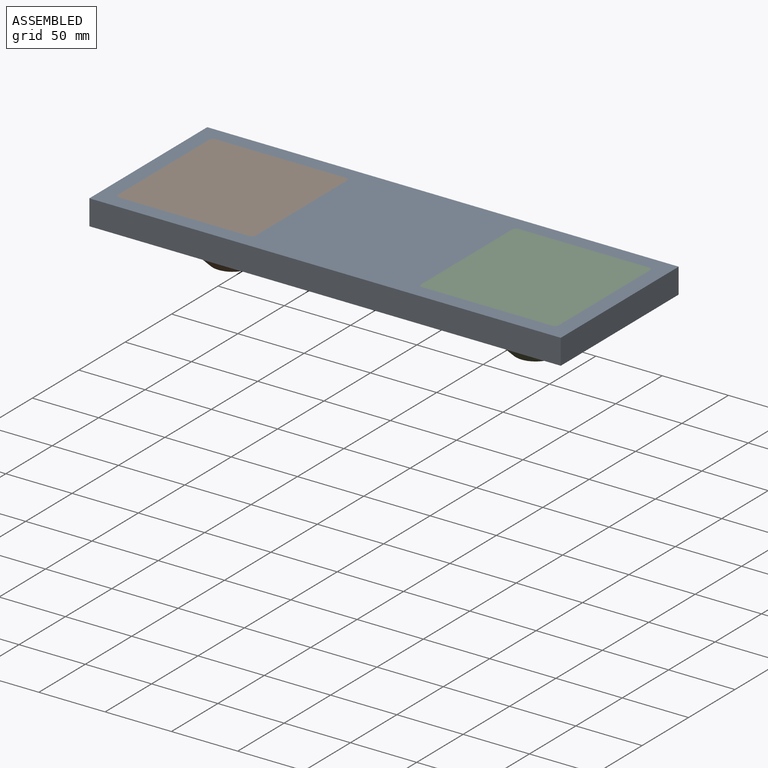
[diagram: assembled view]
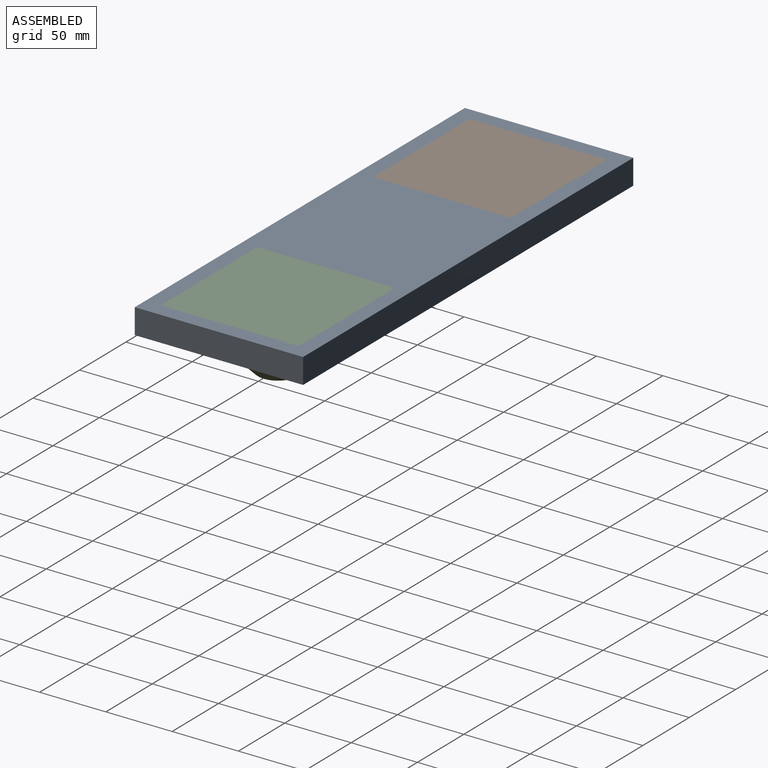
[diagram: assembled view, second angle]
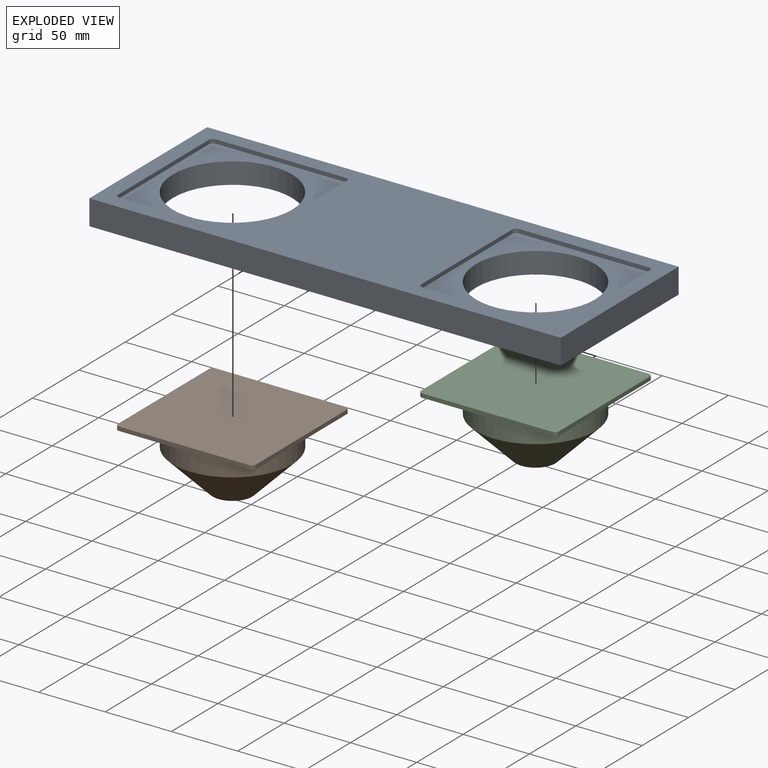
[diagram: exploded view]
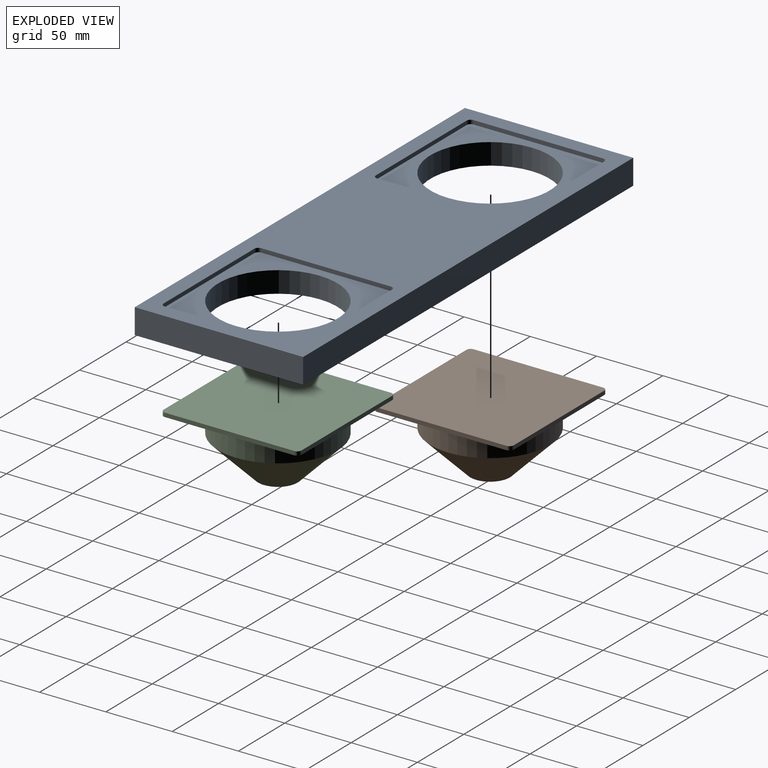
[diagram: exploded view, second angle]
ASSEMBLY  parts=3 mates=2
PART A: 26 faces, bbox 355.6x127x19.1 mm
  f0: plane 355.6x127mm, normal (0,0,1), area 23546.5mm2, adj f1,f2,f3,f4,f6,f7,f8,f9
  f1: plane 127x19.05mm, normal (1,0,0), area 2419.3mm2, adj f0,f2,f4,f5
  f2: plane 355.6x19.05mm, normal (0,1,0), area 6774.2mm2, adj f0,f1,f3,f5
  f3: plane 127x19.05mm, normal (-1,0,0), area 2419.3mm2, adj f0,f2,f4,f5
  f4: plane 355.6x19.05mm, normal (0,-1,0), area 6774.2mm2, adj f0,f1,f3,f5
  f5: plane 355.6x127mm, normal (0,0,-1), area 32437.7mm2, adj f1,f2,f3,f4,f15,f25
  f6: plane 97.65x3mm, normal (-1,0,0), area 293mm2, adj f0,f7,f13,f14
  f7: cylinder r=3.17mm len=3.18mm, axis (0,0,1), area 15mm2, adj f0,f6,f8,f14
  f8: plane 97.65x3mm, normal (0,-1,0), area 293mm2, adj f0,f7,f9,f14
  f9: cylinder r=3.17mm len=3.18mm, axis (0,0,1), area 15mm2, adj f0,f8,f10,f14
  f10: plane 97.65x3mm, normal (1,0,0), area 293mm2, adj f0,f9,f11,f14
  f11: cylinder r=3.17mm len=3.18mm, axis (0,0,1), area 15mm2, adj f0,f10,f12,f14
  f12: plane 97.65x3mm, normal (0,1,0), area 293mm2, adj f0,f11,f13,f14
  f13: cylinder r=3.17mm len=3.18mm, axis (0,0,1), area 15mm2, adj f0,f6,f12,f14
  f14: plane 104x104mm, normal (0,0,1), area 4445.6mm2, adj f6,f7,f8,f9,f10,f11,f12,f13
  f15: cylinder r=45mm len=90mm, axis (0,0,1), area 4538mm2, adj f5,f14
  f16: plane 97.65x3mm, normal (-1,0,0), area 293mm2, adj f0,f17,f23,f24
  f17: cylinder r=3.17mm len=3.18mm, axis (0,0,1), area 15mm2, adj f0,f16,f18,f24
  f18: plane 97.65x3mm, normal (0,-1,0), area 293mm2, adj f0,f17,f19,f24
  f19: cylinder r=3.17mm len=3.18mm, axis (0,0,1), area 15mm2, adj f0,f18,f20,f24
  f20: plane 97.65x3mm, normal (1,0,0), area 293mm2, adj f0,f19,f21,f24
  f21: cylinder r=3.17mm len=3.18mm, axis (0,0,1), area 15mm2, adj f0,f20,f22,f24
  f22: plane 97.65x3mm, normal (0,1,0), area 293mm2, adj f0,f21,f23,f24
  f23: cylinder r=3.17mm len=3.18mm, axis (0,0,1), area 15mm2, adj f0,f16,f22,f24
  f24: plane 104x104mm, normal (0,0,1), area 4445.6mm2, adj f16,f17,f18,f19,f20,f21,f22,f23
  f25: cylinder r=45mm len=90mm, axis (0,0,1), area 4538mm2, adj f5,f24
PART B: 13 faces, bbox 104x50.4x104 mm
  f0: plane 97.65x3mm, normal (1,0,0), area 292.9mm2, adj f4,f5,f6,f9
  f1: plane 97.65x3mm, normal (0,0,1), area 292.9mm2, adj f4,f5,f6,f7
  f2: plane 97.65x3mm, normal (-1,0,0), area 292.9mm2, adj f4,f5,f7,f8
  f3: plane 97.65x3mm, normal (0,0,-1), area 292.9mm2, adj f4,f5,f8,f9
  f4: plane 104x104mm, normal (0,-1,0), area 10807.3mm2, adj f0,f1,f2,f3,f6,f7,f8,f9
  f5: plane 104x104mm, normal (0,1,0), area 4445.6mm2, adj f0,f1,f2,f3,f6,f7,f8,f9
  f6: cylinder r=3.17mm len=3.18mm, axis (0,-1,0), area 15mm2, adj f0,f1,f4,f5
  f7: cylinder r=3.17mm len=3.18mm, axis (0,1,0), area 15mm2, adj f1,f2,f4,f5
  f8: cylinder r=3.17mm len=3.18mm, axis (0,-1,0), area 15mm2, adj f2,f3,f4,f5
  f9: cylinder r=3.17mm len=3.18mm, axis (0,1,0), area 15mm2, adj f0,f3,f4,f5
  f10: cylinder r=45mm len=90mm, axis (0,-1,0), area 4919.7mm2, adj f5,f12
  f11: plane 30x30mm, normal (0,1,0), area 706.9mm2, adj f12
  f12: cone r=15mm half-angle=45deg, axis (0,-1,0), area 7997.2mm2, adj f10,f11
PART C: same geometry as B
PLACE A t=(0.3,-0.01,-9.8)mm
PLACE B rot(axis=(-1,0,0),90deg) t=(-114,-0.01,6.25)mm
PLACE C rot(axis=(-1,0,0),90deg) t=(114.6,-0.01,6.25)mm
MATE fastened B.f7 <-> A.f9  axis (0,0,-1) through (-162.83,48.81,6.25)mm
MATE fastened C.f7 <-> A.f19  axis (0,0,-1) through (65.77,48.81,6.25)mm
